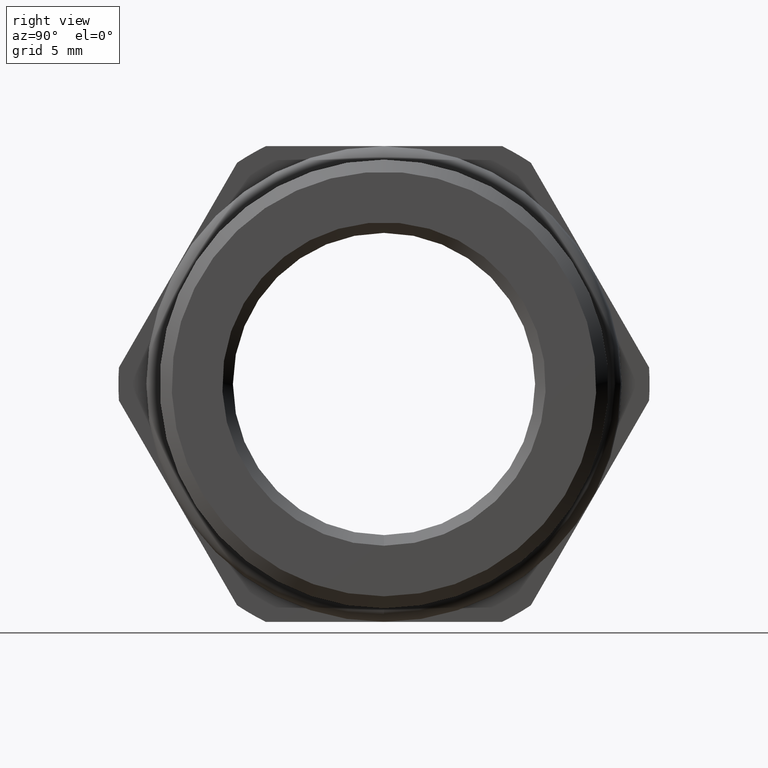
[diagram: clean part render]
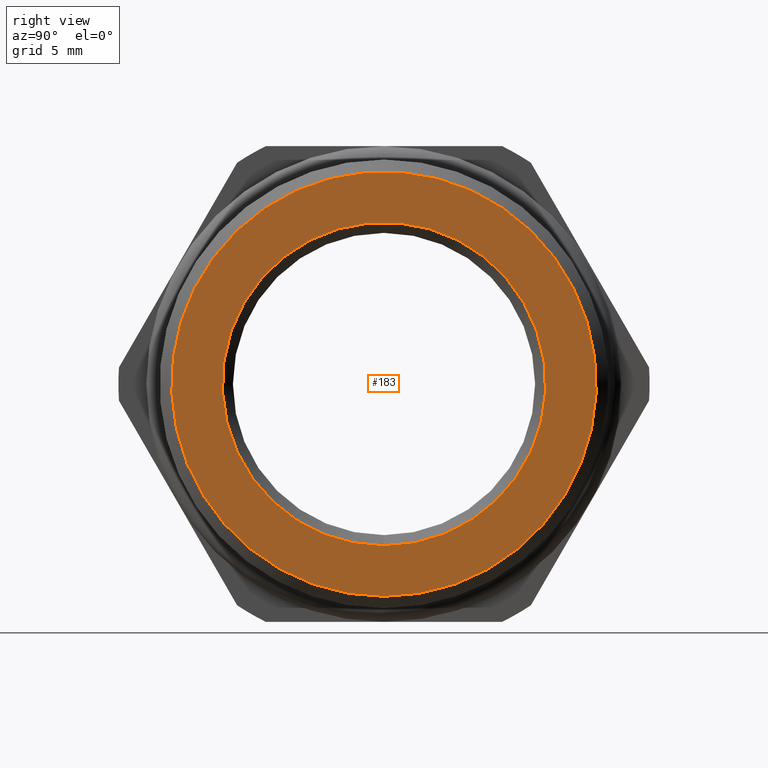
[diagram: same view with one face highlighted and labeled with its STEP entity id]
A machine part, right view. The second image highlights one B-rep face of the part: STEP entity #183.
In plain terms, the highlighted planar face has unit normal (-1, 0, 0).
Its self-contained STEP definition (entity closure, byte-faithful):
#183 = ADVANCED_FACE( '', ( #236, #237 ), #238, .F. );
#236 = FACE_BOUND( '', #311, .T. );
#237 = FACE_OUTER_BOUND( '', #312, .T. );
#238 = PLANE( '', #313 );
#311 = EDGE_LOOP( '', ( #457 ) );
#312 = EDGE_LOOP( '', ( #458 ) );
#313 = AXIS2_PLACEMENT_3D( '', #459, #460, #461 );
#457 = ORIENTED_EDGE( '', *, *, #604, .F. );
#458 = ORIENTED_EDGE( '', *, *, #607, .T. );
#459 = CARTESIAN_POINT( '', ( 10.3000000000000, 13.3900000000000, 0.000000000000000 ) );
#460 = DIRECTION( '', ( -1.00000000000000, 0.000000000000000, 0.000000000000000 ) );
#461 = DIRECTION( '', ( 0.000000000000000, 0.000000000000000, 1.00000000000000 ) );
#604 = EDGE_CURVE( '', #693, #693, #694, .T. );
#607 = EDGE_CURVE( '', #699, #699, #700, .T. );
#693 = VERTEX_POINT( '', #852 );
#694 = CIRCLE( '', #853, 10.2000000000000 );
#699 = VERTEX_POINT( '', #858 );
#700 = CIRCLE( '', #859, 13.3900000000000 );
#852 = CARTESIAN_POINT( '', ( 10.3000000000000, 0.000000000000000, -10.2000000000000 ) );
#853 = AXIS2_PLACEMENT_3D( '', #969, #970, #971 );
#858 = CARTESIAN_POINT( '', ( 10.3000000000000, 0.000000000000000, -13.3900000000000 ) );
#859 = AXIS2_PLACEMENT_3D( '', #978, #979, #980 );
#969 = CARTESIAN_POINT( '', ( 10.3000000000000, 0.000000000000000, 0.000000000000000 ) );
#970 = DIRECTION( '', ( 1.00000000000000, 0.000000000000000, -0.000000000000000 ) );
#971 = DIRECTION( '', ( -0.000000000000000, 0.000000000000000, -1.00000000000000 ) );
#978 = CARTESIAN_POINT( '', ( 10.3000000000000, 0.000000000000000, 0.000000000000000 ) );
#979 = DIRECTION( '', ( 1.00000000000000, 0.000000000000000, -0.000000000000000 ) );
#980 = DIRECTION( '', ( -0.000000000000000, 0.000000000000000, -1.00000000000000 ) );